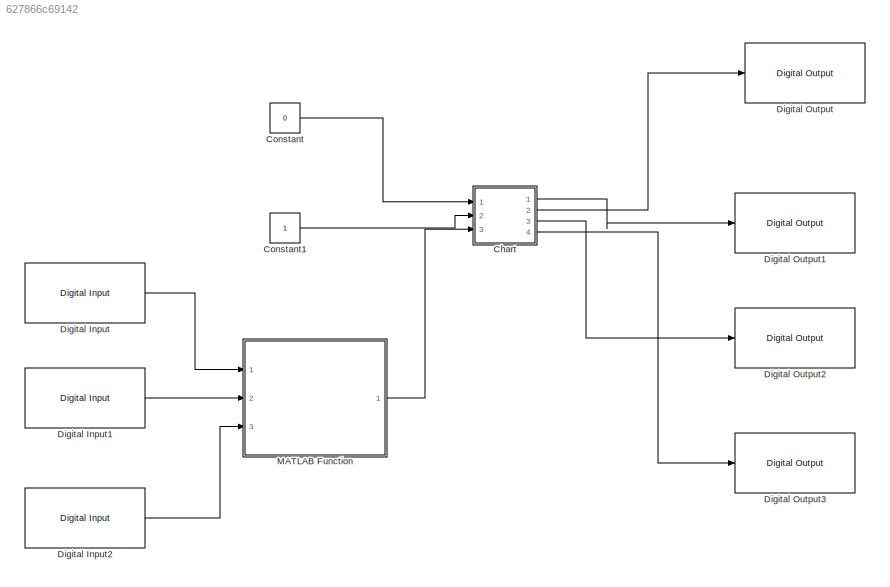
MODEL slx_627866c69142
KIND model
CONFIG AbsTol = auto
CONFIG FixedStep = 0.1
CONFIG MaxStep = auto
CONFIG MinStep = auto
CONFIG RelTol = 1e-3
CONFIG SampleTimeConstraint = Unconstrained
CONFIG Solver = FixedStepDiscrete
CONFIG SolverMode = Auto
CONFIG SolverName = FixedStepDiscrete
CONFIG StartTime = 0.0
CONFIG StopTime = inf
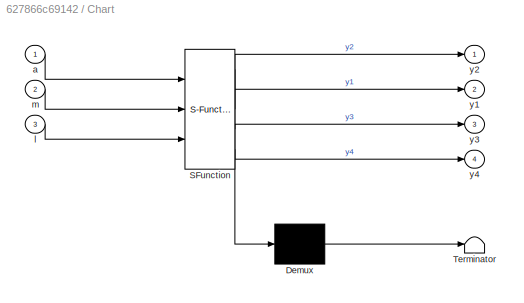
BLOCK [SubSystem] Chart
  ErrorFcn = Stateflow.Translate.translate
  PermitHierarchicalResolution = ExplicitOnly
  Ports = [3, 4]
  RequestExecContextInheritance = off
  SFBlockType = Chart
  TreatAsAtomicUnit = on
  Variant = off
BLOCK [Demux] Chart/ Demux 
  Outputs = 1
  Ports = [1, 1]
BLOCK [S-Function] Chart/ SFunction 
  EnableBusSupport = on
  FunctionName = sf_sfun
  PortCounts = [3 5]
  Ports = [3, 5]
  SFunctionDeploymentMode = off
  Tag = Stateflow S-Function CAR_Simulink 3
BLOCK [Terminator] Chart/ Terminator 
BLOCK [Inport] Chart/a
  IconDisplay = Port number
BLOCK [Inport] Chart/l
  IconDisplay = Port number
  Port = 3
BLOCK [Inport] Chart/m
  IconDisplay = Port number
  Port = 2
BLOCK [Outport] Chart/y1
  IconDisplay = Port number
  Port = 2
BLOCK [Outport] Chart/y2
  IconDisplay = Port number
BLOCK [Outport] Chart/y3
  IconDisplay = Port number
  Port = 3
BLOCK [Outport] Chart/y4
  IconDisplay = Port number
  Port = 4
BLOCK [Constant] Constant
  Value = 0
BLOCK [Constant] Constant1
BLOCK [Reference] Digital Input  REF=arduinolib/Digital Input
  Ports = [0, 1]
  SourceBlock = arduinolib/Digital Input
  SourceType = Arduino Digital Input
BLOCK [Reference] Digital Input1  REF=arduinolib/Digital Input
  Ports = [0, 1]
  SourceBlock = arduinolib/Digital Input
  SourceType = Arduino Digital Input
BLOCK [Reference] Digital Input2  REF=arduinolib/Digital Input
  Ports = [0, 1]
  SourceBlock = arduinolib/Digital Input
  SourceType = Arduino Digital Input
BLOCK [Reference] Digital Output  REF=arduinolib/Digital Output
  Ports = [1]
  SourceBlock = arduinolib/Digital Output
  SourceType = Arduino Digital Output
BLOCK [Reference] Digital Output1  REF=arduinolib/Digital Output
  Ports = [1]
  SourceBlock = arduinolib/Digital Output
  SourceType = Arduino Digital Output
BLOCK [Reference] Digital Output2  REF=arduinolib/Digital Output
  Ports = [1]
  SourceBlock = arduinolib/Digital Output
  SourceType = Arduino Digital Output
BLOCK [Reference] Digital Output3  REF=arduinolib/Digital Output
  Ports = [1]
  SourceBlock = arduinolib/Digital Output
  SourceType = Arduino Digital Output
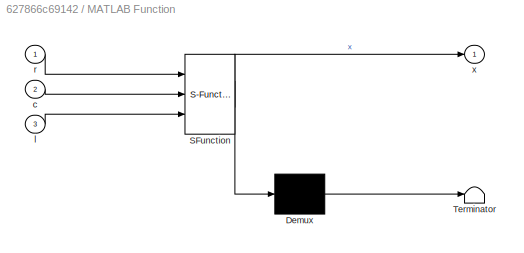
BLOCK [SubSystem] MATLAB Function
  ErrorFcn = Stateflow.Translate.translate
  PermitHierarchicalResolution = ExplicitOnly
  Ports = [3, 1]
  RequestExecContextInheritance = off
  SFBlockType = MATLAB Function
  TreatAsAtomicUnit = on
  Variant = off
BLOCK [Demux] MATLAB Function/ Demux 
  Outputs = 1
  Ports = [1, 1]
BLOCK [S-Function] MATLAB Function/ SFunction 
  EnableBusSupport = on
  FunctionName = sf_sfun
  PortCounts = [3 2]
  Ports = [3, 2]
  SFunctionDeploymentMode = off
  Tag = Stateflow S-Function CAR_Simulink 2
BLOCK [Terminator] MATLAB Function/ Terminator 
BLOCK [Inport] MATLAB Function/c
  IconDisplay = Port number
  Port = 2
BLOCK [Inport] MATLAB Function/l
  IconDisplay = Port number
  Port = 3
BLOCK [Inport] MATLAB Function/r
  IconDisplay = Port number
BLOCK [Outport] MATLAB Function/x
  IconDisplay = Port number
LINE Chart:1 -> Digital Output1:1
LINE Chart:2 -> Digital Output:1
LINE Chart:3 -> Digital Output2:1
LINE Chart:4 -> Digital Output3:1
LINE Constant1:1 -> Chart:2
LINE Constant:1 -> Chart:1
LINE Digital Input1:1 -> MATLAB Function:2
LINE Digital Input2:1 -> MATLAB Function:3
LINE Digital Input:1 -> MATLAB Function:1
LINE MATLAB Function:1 -> Chart:3
CHART MATLAB Function states=1 transitions=1
  STATE_LABEL 'eML_blk_kernel()'
  STATE_LABEL 'SCRIPT:\nfunction x  = fcn(r,c,l)\n%#codegen\n\nif (l==0 && c==1 && r ==0)   % fwd\n    x=1;\n\nelseif (l==0 && c==0 && r ==0)  % stop\n    x=2;\n    \nelseif (l==0 && c==0 && r ==1)  % right \n   x=3;\n   \nelseif (l==1 && c==0 && r ==0)  %left\n    x=4;\nelse\n    x=1;\n    \nend\n\n    \n\n\nend\n'
CHART Chart states=11 transitions=38
  STATE_LABEL 'MODE\nentry: y1=0\n y2=0\n y3=0\n y4=0\n'
  STATE_LABEL 'stop\nentry: y1=0\n y2=0\n y3=0\n y4=0'
  STATE_LABEL 'm1\nentry: y1= 5\n y3=5\n y2=0\n y4=0'
  STATE_LABEL 'm4\nentry: y1=5\n y2=0\n y3=0\n y4=0\n'
  STATE_LABEL 'm3\nentry: y3=5\n y1=0\n y2=0\n y4=0\n'
  STATE_LABEL 'm2\nentry: y2=5\n y4=5\n y1=0\n y3=0'
  STATE_LABEL 'LineFollower\nentry: y1=0\n y2=0\n y3=0\n y4=0'
  STATE_LABEL 'LEFT\nentry: y1=5\n y2=0\n y3=0\n y4=0'
  STATE_LABEL 'RIGHT1\nentry: y3=5\n y1=0\n y2=0\n y4=0'
  STATE_LABEL 'STOP\nentry: y2=0\n y4=0\n y1=0\n y3=0'
  STATE_LABEL 'FWD\nentry: y1= 5\n y3=5\n y2=0\n y4=0'
